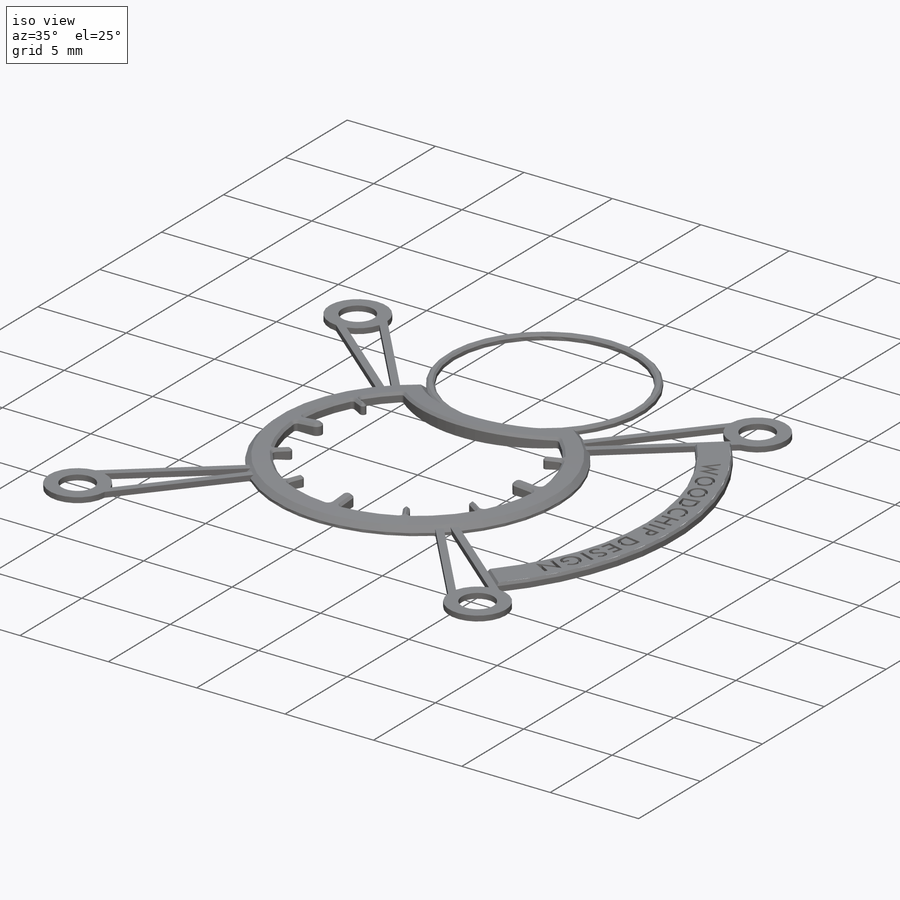
[diagram: iso view]
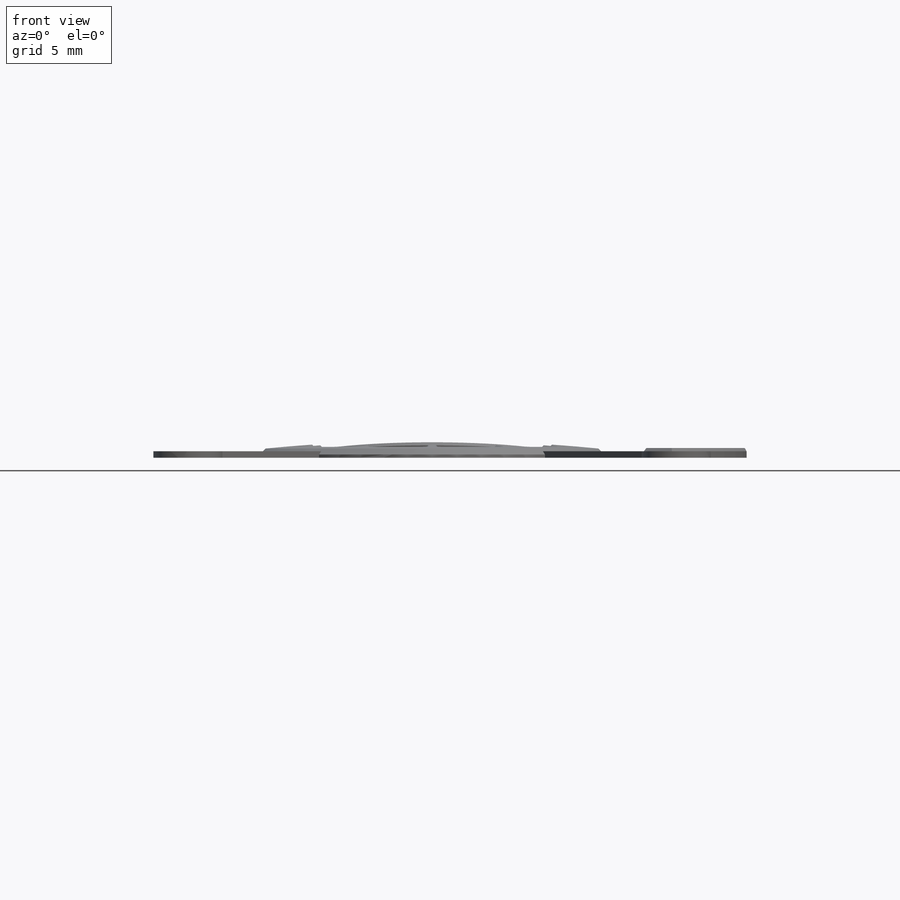
[diagram: front view]
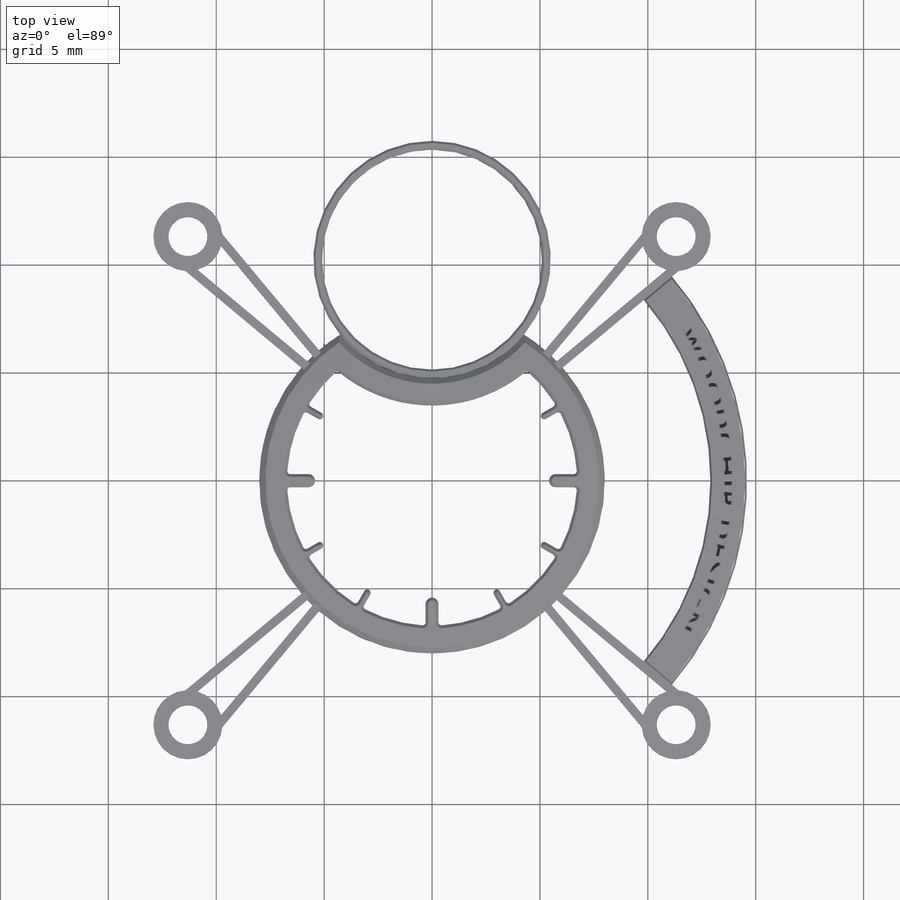
[diagram: top view]
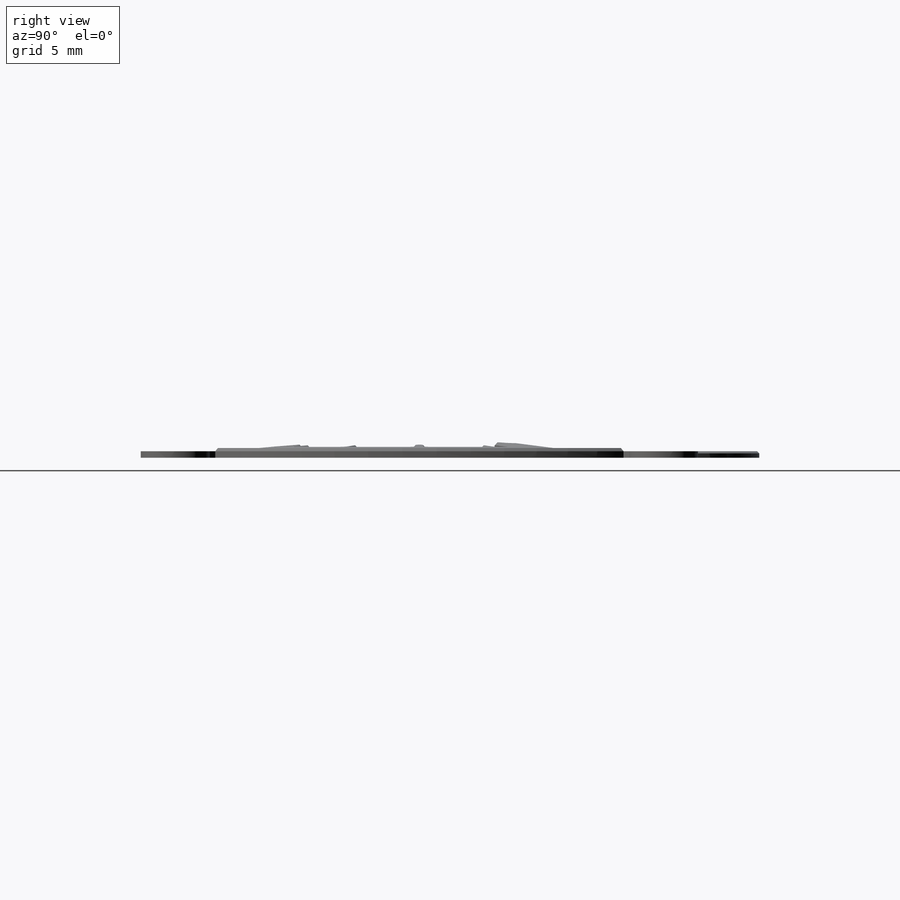
[diagram: right view]
SOLIDWORKS PART (.sldprt)
format: sldprt  version: not decoded by parser v0  size: 1,108,992 bytes
history: native  units: mm
features: sketch x10, extrude x6, cut_extrude x3, chamfer x3, material x1, dome x1, boolean_combine x1, fillet x1, pattern_circular x1 (+11 scaffold rows collapsed)
feature tree (38):
  scaffold x11  (default folders/planes/origin — collapsed)
  material  "Material <not specified>"
  sketch  "Sketch1"  dims[D1=11.0mm D3=16.0mm D2=10.25mm]
  extrude  "Boss-Extrude1"  Depth=0.4mm
  dome  "Dome1"
  cut_extrude  "Cut-Extrude1"  [1 undecoded]
  sketch  "Sketch1<3>"
  chamfer  "Chamfer1"  Distance=0.25mm Angle=45deg
  sketch  "Sketch2"  dims[D1=11.0mm D2=0.4mm]
  extrude  "Boss-Extrude2"  Depth=0.3mm
  chamfer  "Chamfer2"  Distance=0.1mm Angle=45deg
  boolean_combine  "Combine1"
  sketch  "Sketch4"  dims[D3=0.3mm D2=1.0mm D5=90.0deg D1=1.0mm D4=4.0 D6=12.0]
  cut_extrude  "Cut-Extrude3"  [1 undecoded]
  fillet  "Fillet1"  Radius=0.15mm
  chamfer  "Chamfer3"  Distance=0.15mm Angle=45deg
  sketch  "Screw ref"  dims[D1=32.0mm D2=2.6mm]
  sketch  "Sketch6"  dims[D1=0.4mm D2=0.4mm]
  extrude  "Boss-Extrude3"  Depth=0.3mm
  sketch  "Sketch7"  dims[D1=0.3mm]
  extrude  "Boss-Extrude5"  [1 undecoded]
  pattern_circular  "CirPattern2"  Count=4 Angle=360deg
  sketch  "Sketch8"  dims[c1.D1=~14.999834mm c1.D2=~14.499834mm c2.D1=2.0mm c2.D2=1.7mm c3.D1=14.6mm]
  extrude  "Boss-Extrude6"  [1 undecoded]
  extrude  "Boss-Extrude7"  [1 undecoded]
  sketch  "Sketch8<2>"  dims[D1=0.15mm D3=30.0deg]
  sketch  "Sketch9"  dims[D1=0.2mm]
  cut_extrude  "Cut-Extrude4"  Depth=0.2mm
decode coverage: 18 of 26 modeling features carry decoded parameters
note: ~ marks probable driven/reference dimensions
note: 5 parameter values undecoded
summary: no parameter record found for 5 features
note: suppression state not decoded; provenance and decode notes live in map.json
